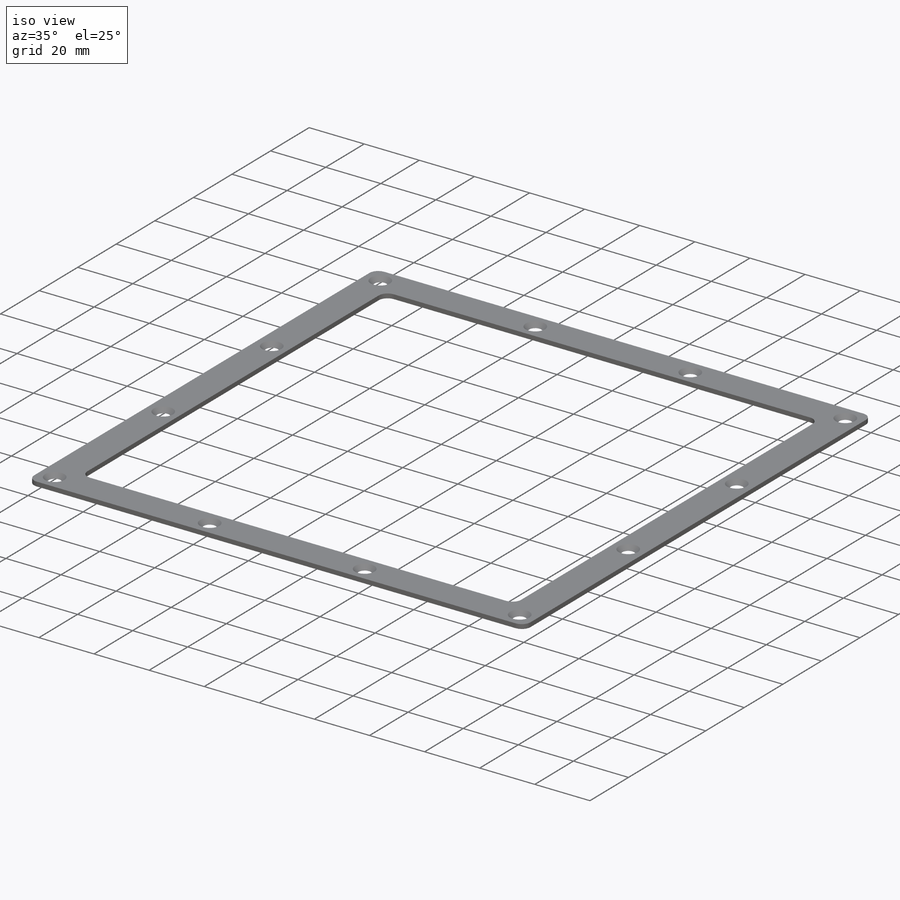
[diagram: iso view]
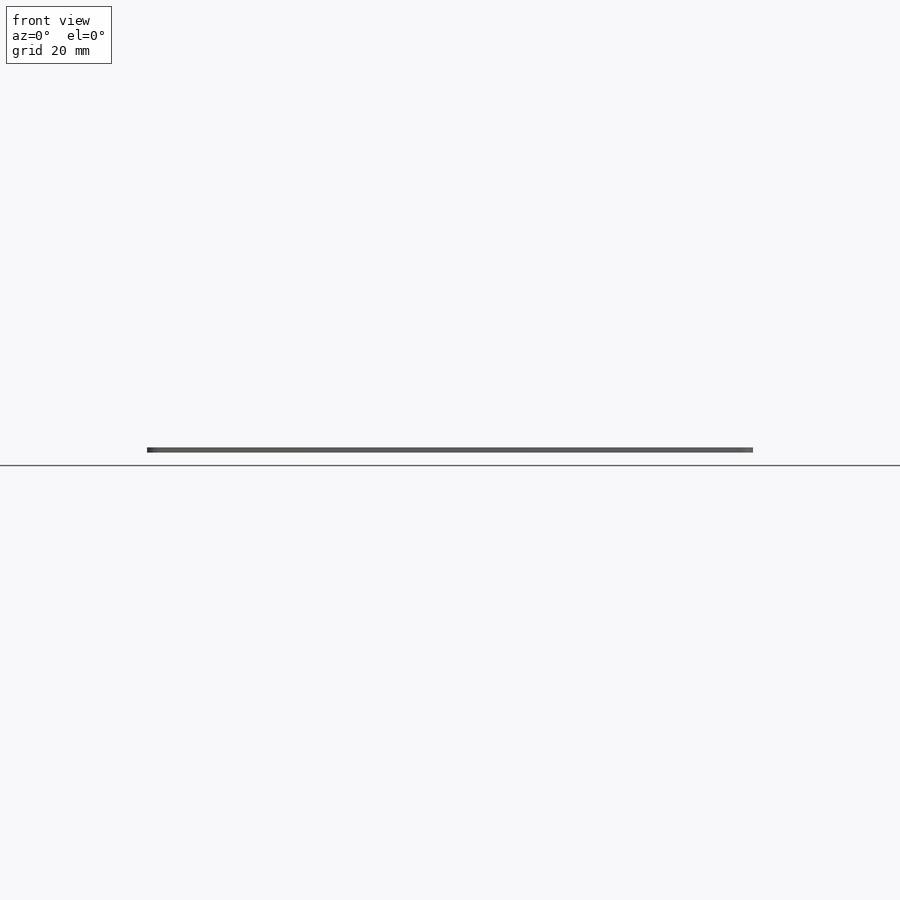
[diagram: front view]
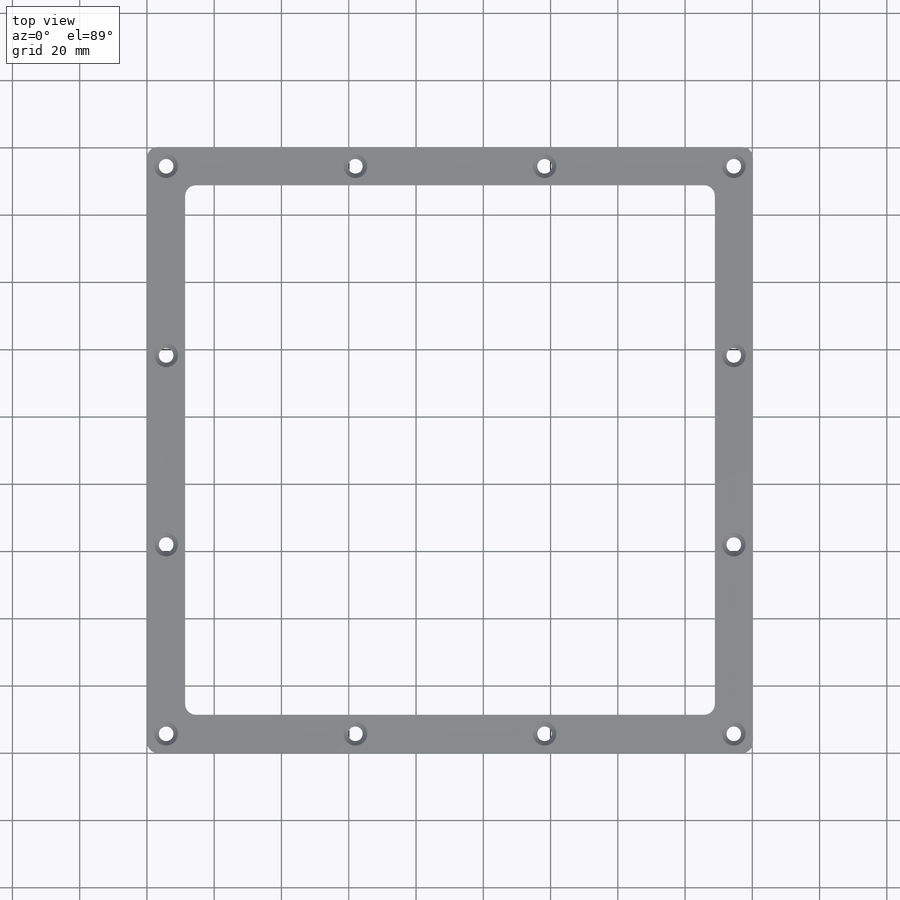
[diagram: top view]
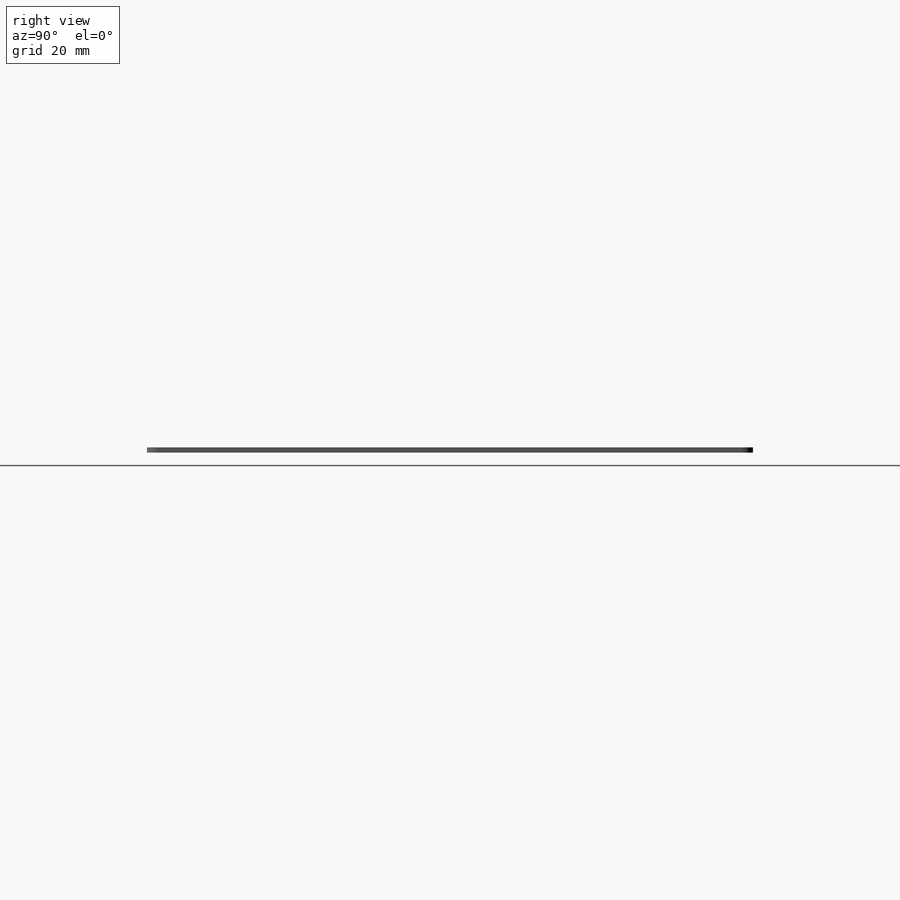
[diagram: right view]
SOLIDWORKS PART (.sldprt)
format: sldprt  version: not decoded by parser v0  size: 355,328 bytes
history: native  units: mm
features: sketch x12, sheet_metal_op x4, material x1, cut_extrude x1, hole x1 + 3 further entries (+13 scaffold rows collapsed; 3 parser-record rows omitted)
feature tree (38):
  scaffold x13  (default folders/planes/origin — collapsed)
  material  "6061 Alloy"
  sketch  "Sketch2"  dims[c1.D3=3.175mm c1.D1=180.213mm c1.D2=180.213mm c2.D1=1.5875mm c2.D2=0.5 c2.D3=0.0mm c2.D6=500.0mm]
  sheet_metal_op  "Base-Flange1"
  sketch  "Sketch7"  dims[c1.D2=3.175mm c1.D1=11.3538mm c1..45=11.3538mm c1.D3=12.7mm c1.D4=157.48mm c1.D5=139.7mm c2.D3=157.48mm c2.D2=11.3538mm c2.D5=11.3538mm c3.D3=11.3538mm c3.D4=11.3538mm]
  cut_extrude  "Cut-Extrude1"  [1 undecoded]
  hole  "CSK for #6 Flat Head Machine Screw1"  Diameter=3.6576mm Depth=1.5875mm
  sketch  "Sketch9"  dims[c1.D1=5.715mm c1.D2=5.715mm c1.D3=5.715mm c1.D4=56.261mm c1.D5=56.261mm c1.D6=173.8376mm c2.D3=56.261mm c2.D5=56.261mm c2.D6=56.261mm c2.D7=5.715mm c2.D8=56.261mm c2.D2=~5.715051mm c2.D9=5.715mm c2.D10=5.715mm c2.D11=5.7404mm c2.D12=~71.414416mm c2.D1=5.715mm c3.D9=~5.790605mm c3.D6=56.261mm c3.D7=56.261mm]
  sketch  "Sketch8"  dims[hole-wizard template sketch: 54 standard entries collapsed; hole parameters kept: c17.Thru Hole Dia.=3.6576mm c17.Thru Hole Depth=1.5875mm c17.Near C'Sink Dia.=7.0866mm c17.D4=~3.666174mm c17.Near C'Sink Angle=82.0deg]
  sketch  "Bend-Lines1"
  sketch  "Bounding-Box1"
  sheet_metal_op  "Sheet-Metal1"
  "Flat-Pattern1"
  sketch  "Bend-Lines2"
  sketch  "Bounding-Box2"
  parser-record x3  (decoder bookkeeping rows leaked as tree rows — omitted from the tree; the rows remain in map.json)
  sheet_metal_op  "Sheet-Metal2"
  "Flat-Pattern1"
  sketch  "Bend-Lines2"
  sketch  "Bounding-Box2"
  sheet_metal_op  "Sheet-Metal5"
  "Flat-Pattern1"
  sketch  "Bend-Lines2"
  sketch  "Bounding-Box2"
decode coverage: 5 of 18 modeling features carry decoded parameters; 3 rows unclassified (native names shown)
note: ~ marks probable driven/reference dimensions
note: 1 parameter value undecoded
note: suppression state not decoded; provenance and decode notes live in map.json
